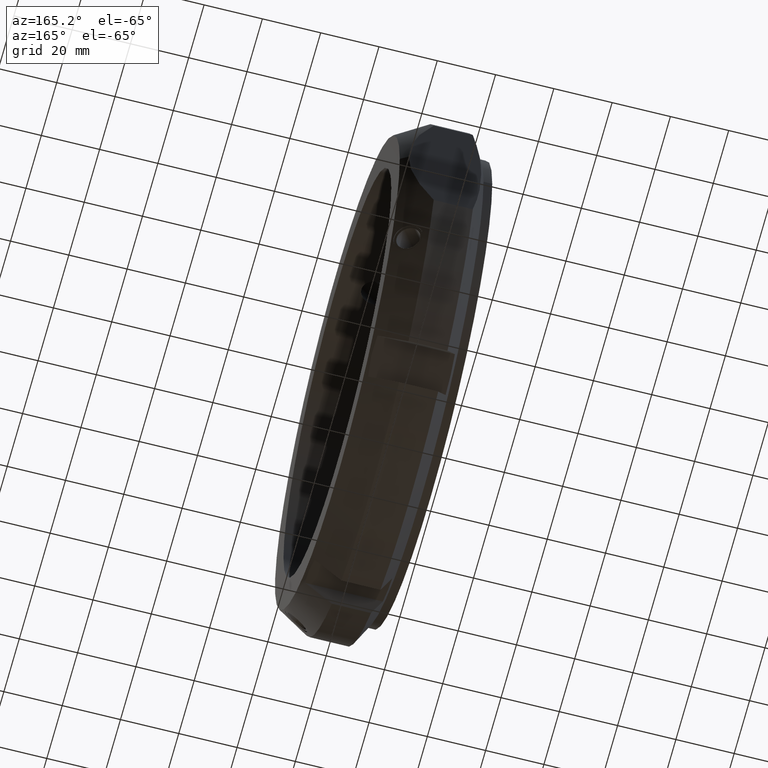
[diagram: clean part render]
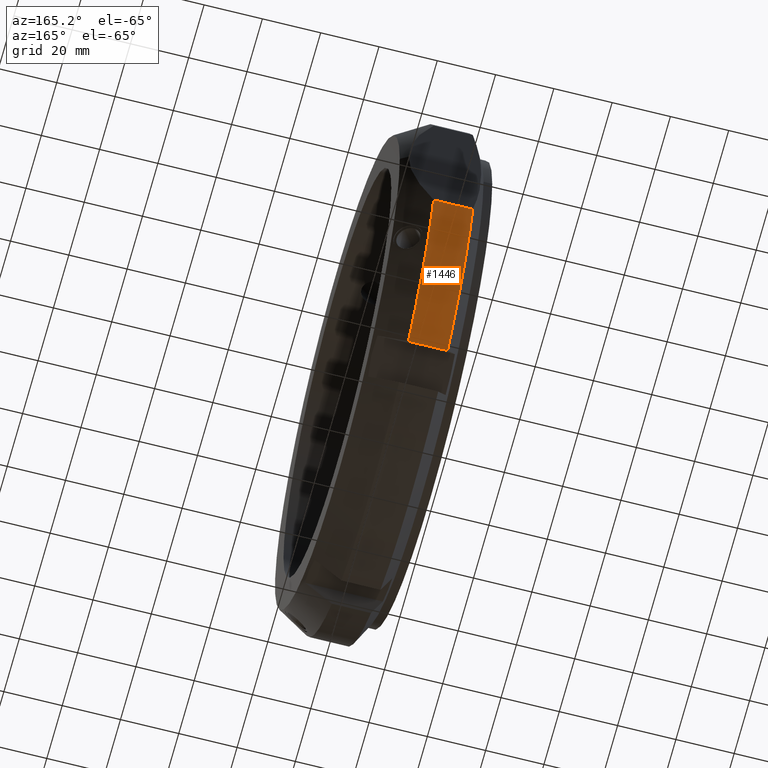
[diagram: same view with one face highlighted and labeled with its STEP entity id]
A machine part, auxiliary view. The second image highlights one B-rep face of the part: STEP entity #1446.
In plain terms, the highlighted cylindrical surface (partial cylindrical patch) has radius 87.5 mm, axis along (1, 0, 0).
Its self-contained STEP definition (entity closure, byte-faithful):
#172=CARTESIAN_POINT('',(7.330127018922157,49.671953106810882,-72.034346492175374));
#173=VERTEX_POINT('',#172);
#187=CARTESIAN_POINT('',(20.741669750802298,49.671953106810882,-72.034346492175374));
#188=VERTEX_POINT('',#187);
#189=CARTESIAN_POINT('',(20.741669750802298,49.671953106810903,-72.034346492175388));
#190=DIRECTION('',(-1.0,0.0,0.0));
#191=VECTOR('',#190,13.411542731880143);
#192=LINE('',#189,#191);
#193=EDGE_CURVE('',#188,#173,#192,.T.);
#526=CARTESIAN_POINT('',(7.330127018922164,82.500000000000028,-29.154759474226392));
#527=VERTEX_POINT('',#526);
#541=CARTESIAN_POINT('',(7.330127018922164,0.0,0.0));
#542=DIRECTION('',(1.0,0.0,0.0));
#543=DIRECTION('',(0.0,1.0,0.0));
#544=AXIS2_PLACEMENT_3D('',#541,#542,#543);
#545=CIRCLE('',#544,87.5);
#546=EDGE_CURVE('',#173,#527,#545,.T.);
#851=CARTESIAN_POINT('',(20.741669750802263,82.500000000000028,-29.154759474226392));
#852=VERTEX_POINT('',#851);
#866=CARTESIAN_POINT('',(7.330127018922163,82.500000000000028,-29.154759474226392));
#867=DIRECTION('',(1.0,0.0,0.0));
#868=VECTOR('',#867,13.4115427318801);
#869=LINE('',#866,#868);
#870=EDGE_CURVE('',#527,#852,#869,.T.);
#905=CARTESIAN_POINT('',(20.741669750802263,0.0,0.0));
#906=DIRECTION('',(1.0,0.0,0.0));
#907=DIRECTION('',(0.0,1.0,0.0));
#908=AXIS2_PLACEMENT_3D('',#905,#906,#907);
#909=CIRCLE('',#908,87.5);
#910=EDGE_CURVE('',#188,#852,#909,.T.);
#1435=CARTESIAN_POINT('',(14.035898384862215,0.0,0.0));
#1436=DIRECTION('',(1.0,0.0,0.0));
#1437=DIRECTION('',(0.0,1.0,0.0));
#1438=AXIS2_PLACEMENT_3D('',#1435,#1436,#1437);
#1439=CYLINDRICAL_SURFACE('',#1438,87.5);
#1440=ORIENTED_EDGE('',*,*,#193,.T.);
#1441=ORIENTED_EDGE('',*,*,#546,.T.);
#1442=ORIENTED_EDGE('',*,*,#870,.T.);
#1443=ORIENTED_EDGE('',*,*,#910,.F.);
#1444=EDGE_LOOP('',(#1440,#1441,#1442,#1443));
#1445=FACE_OUTER_BOUND('',#1444,.T.);
#1446=ADVANCED_FACE('',(#1445),#1439,.T.);